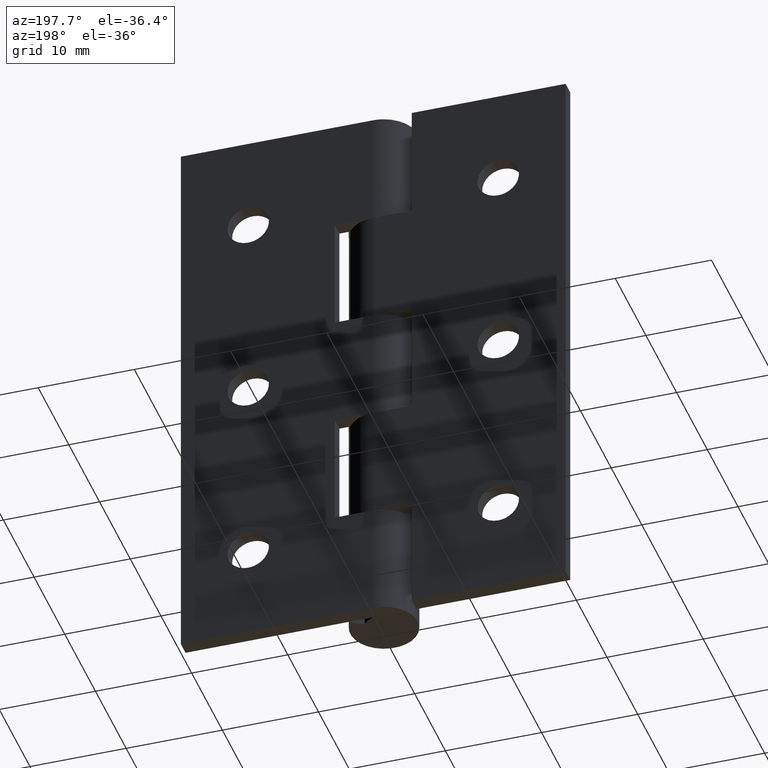
[diagram: clean part render]
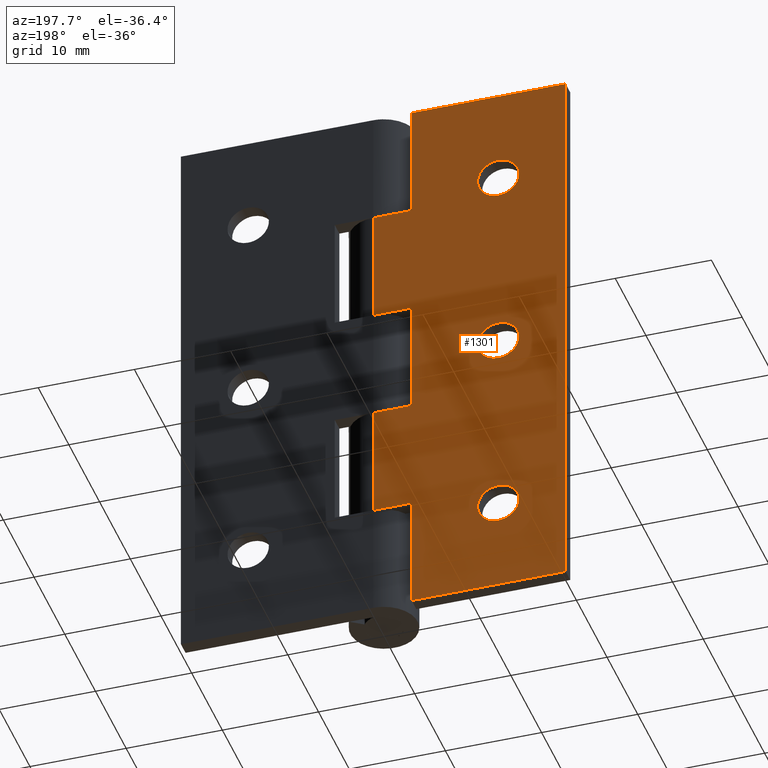
[diagram: same view with one face highlighted and labeled with its STEP entity id]
A machine part, auxiliary view. The second image highlights one B-rep face of the part: STEP entity #1301.
In plain terms, the highlighted face is a freeform B-spline surface patch.
Its self-contained STEP definition (entity closure, byte-faithful):
#79=CARTESIAN_POINT('',(-15.143372267521089,3.499999999999950,50.168687055877513));
#80=VERTEX_POINT('',#79);
#86=CARTESIAN_POINT('',(-12.999999999999799,3.499999999999950,52.149999999999999));
#87=VERTEX_POINT('',#86);
#88=CARTESIAN_POINT('',(-12.999999999999799,3.499999999999950,52.149999999999999));
#89=CARTESIAN_POINT('',(-14.987439556948409,3.499999999999951,52.149999999999999));
#90=CARTESIAN_POINT('',(-15.143372267521102,3.499999999999951,50.168687055877506));
#98=(BOUNDED_CURVE()B_SPLINE_CURVE(2,(#88,#89,#90),.UNSPECIFIED.,.F.,.U.)B_SPLINE_CURVE_WITH_KNOTS((3,3),(0.0,0.236331300622746),.UNSPECIFIED.)CURVE()GEOMETRIC_REPRESENTATION_ITEM()RATIONAL_B_SPLINE_CURVE((1.0,0.723120658616937,0.969723356150902))REPRESENTATION_ITEM(''));
#99=EDGE_CURVE('',#87,#80,#98,.T.);
#101=CARTESIAN_POINT('',(-10.856627732478509,3.499999999999950,49.831312944122480));
#102=VERTEX_POINT('',#101);
#103=CARTESIAN_POINT('',(-10.856627732478511,3.499999999999950,49.831312944122487));
#104=CARTESIAN_POINT('',(-10.849999999999806,3.499999999999950,49.915526269870583));
#105=CARTESIAN_POINT('',(-10.849999999999801,3.499999999999950,50.0));
#106=CARTESIAN_POINT('',(-10.849999999999801,3.499999999999950,52.149999999999999));
#107=CARTESIAN_POINT('',(-12.999999999999799,3.499999999999950,52.149999999999999));
#115=(BOUNDED_CURVE()B_SPLINE_CURVE(2,(#103,#104,#105,#106,#107),.UNSPECIFIED.,.F.,.U.)B_SPLINE_CURVE_WITH_KNOTS((3,2,3),(0.736331300622746,0.750000000000000,1.0),.UNSPECIFIED.)CURVE()GEOMETRIC_REPRESENTATION_ITEM()RATIONAL_B_SPLINE_CURVE((0.969723356150902,0.983986122569610,1.0,0.707106781186547,1.0))REPRESENTATION_ITEM(''));
#116=EDGE_CURVE('',#102,#87,#115,.T.);
#192=CARTESIAN_POINT('',(-12.999999999999799,3.499999999999950,47.850000000000001));
#193=VERTEX_POINT('',#192);
#194=CARTESIAN_POINT('',(-12.999999999999799,3.499999999999950,47.850000000000001));
#195=CARTESIAN_POINT('',(-11.012560443051203,3.499999999999951,47.849999999999994));
#196=CARTESIAN_POINT('',(-10.856627732478504,3.499999999999951,49.831312944122480));
#204=(BOUNDED_CURVE()B_SPLINE_CURVE(2,(#194,#195,#196),.UNSPECIFIED.,.F.,.U.)B_SPLINE_CURVE_WITH_KNOTS((3,3),(0.500000000000000,0.736331300622745),.UNSPECIFIED.)CURVE()GEOMETRIC_REPRESENTATION_ITEM()RATIONAL_B_SPLINE_CURVE((1.0,0.723120658616938,0.969723356150901))REPRESENTATION_ITEM(''));
#205=EDGE_CURVE('',#193,#102,#204,.T.);
#207=CARTESIAN_POINT('',(-15.143372267521098,3.499999999999951,50.168687055877513));
#208=CARTESIAN_POINT('',(-15.149999999999798,3.499999999999950,50.084473730129424));
#209=CARTESIAN_POINT('',(-15.149999999999800,3.499999999999950,50.0));
#210=CARTESIAN_POINT('',(-15.149999999999796,3.499999999999950,47.849999999999994));
#211=CARTESIAN_POINT('',(-12.999999999999799,3.499999999999950,47.850000000000001));
#219=(BOUNDED_CURVE()B_SPLINE_CURVE(2,(#207,#208,#209,#210,#211),.UNSPECIFIED.,.F.,.U.)B_SPLINE_CURVE_WITH_KNOTS((3,2,3),(0.236331300622746,0.250000000000000,0.500000000000000),.UNSPECIFIED.)CURVE()GEOMETRIC_REPRESENTATION_ITEM()RATIONAL_B_SPLINE_CURVE((0.969723356150902,0.983986122569610,1.0,0.707106781186547,1.0))REPRESENTATION_ITEM(''));
#220=EDGE_CURVE('',#80,#193,#219,.T.);
#261=CARTESIAN_POINT('',(-15.143372267521089,3.499999999999950,30.168687055877509));
#262=VERTEX_POINT('',#261);
#268=CARTESIAN_POINT('',(-12.999999999999799,3.499999999999950,32.149999999999999));
#269=VERTEX_POINT('',#268);
#270=CARTESIAN_POINT('',(-12.999999999999799,3.499999999999950,32.149999999999999));
#271=CARTESIAN_POINT('',(-14.987439556948409,3.499999999999951,32.150000000000006));
#272=CARTESIAN_POINT('',(-15.143372267521102,3.499999999999951,30.168687055877513));
#280=(BOUNDED_CURVE()B_SPLINE_CURVE(2,(#270,#271,#272),.UNSPECIFIED.,.F.,.U.)B_SPLINE_CURVE_WITH_KNOTS((3,3),(0.0,0.236331300622746),.UNSPECIFIED.)CURVE()GEOMETRIC_REPRESENTATION_ITEM()RATIONAL_B_SPLINE_CURVE((1.0,0.723120658616937,0.969723356150902))REPRESENTATION_ITEM(''));
#281=EDGE_CURVE('',#269,#262,#280,.T.);
#283=CARTESIAN_POINT('',(-10.856627732478509,3.499999999999950,29.831312944122491));
#284=VERTEX_POINT('',#283);
#285=CARTESIAN_POINT('',(-10.856627732478513,3.499999999999951,29.831312944122484));
#286=CARTESIAN_POINT('',(-10.849999999999795,3.499999999999951,29.915526269870576));
#287=CARTESIAN_POINT('',(-10.849999999999801,3.499999999999950,30.0));
#288=CARTESIAN_POINT('',(-10.849999999999801,3.499999999999950,32.149999999999999));
#289=CARTESIAN_POINT('',(-12.999999999999799,3.499999999999950,32.149999999999999));
#297=(BOUNDED_CURVE()B_SPLINE_CURVE(2,(#285,#286,#287,#288,#289),.UNSPECIFIED.,.F.,.U.)B_SPLINE_CURVE_WITH_KNOTS((3,2,3),(0.736331300622746,0.750000000000000,1.0),.UNSPECIFIED.)CURVE()GEOMETRIC_REPRESENTATION_ITEM()RATIONAL_B_SPLINE_CURVE((0.969723356150902,0.983986122569610,1.0,0.707106781186547,1.0))REPRESENTATION_ITEM(''));
#298=EDGE_CURVE('',#284,#269,#297,.T.);
#374=CARTESIAN_POINT('',(-12.999999999999799,3.499999999999950,27.850000000000001));
#375=VERTEX_POINT('',#374);
#376=CARTESIAN_POINT('',(-12.999999999999799,3.499999999999950,27.850000000000001));
#377=CARTESIAN_POINT('',(-11.012560443051203,3.499999999999951,27.849999999999998));
#378=CARTESIAN_POINT('',(-10.856627732478504,3.499999999999951,29.831312944122487));
#386=(BOUNDED_CURVE()B_SPLINE_CURVE(2,(#376,#377,#378),.UNSPECIFIED.,.F.,.U.)B_SPLINE_CURVE_WITH_KNOTS((3,3),(0.500000000000000,0.736331300622745),.UNSPECIFIED.)CURVE()GEOMETRIC_REPRESENTATION_ITEM()RATIONAL_B_SPLINE_CURVE((1.0,0.723120658616938,0.969723356150901))REPRESENTATION_ITEM(''));
#387=EDGE_CURVE('',#375,#284,#386,.T.);
#389=CARTESIAN_POINT('',(-15.143372267521098,3.499999999999951,30.168687055877513));
#390=CARTESIAN_POINT('',(-15.149999999999798,3.499999999999950,30.084473730129424));
#391=CARTESIAN_POINT('',(-15.149999999999800,3.499999999999950,30.0));
#392=CARTESIAN_POINT('',(-15.149999999999796,3.499999999999950,27.850000000000005));
#393=CARTESIAN_POINT('',(-12.999999999999799,3.499999999999950,27.850000000000001));
#401=(BOUNDED_CURVE()B_SPLINE_CURVE(2,(#389,#390,#391,#392,#393),.UNSPECIFIED.,.F.,.U.)B_SPLINE_CURVE_WITH_KNOTS((3,2,3),(0.236331300622746,0.250000000000000,0.500000000000000),.UNSPECIFIED.)CURVE()GEOMETRIC_REPRESENTATION_ITEM()RATIONAL_B_SPLINE_CURVE((0.969723356150902,0.983986122569610,1.0,0.707106781186547,1.0))REPRESENTATION_ITEM(''));
#402=EDGE_CURVE('',#262,#375,#401,.T.);
#443=CARTESIAN_POINT('',(-15.143372267521089,3.499999999999950,10.168687055877520));
#444=VERTEX_POINT('',#443);
#450=CARTESIAN_POINT('',(-12.999999999999799,3.499999999999950,12.150000000000000));
#451=VERTEX_POINT('',#450);
#452=CARTESIAN_POINT('',(-12.999999999999799,3.499999999999950,12.150000000000000));
#453=CARTESIAN_POINT('',(-14.987439556948409,3.499999999999951,12.149999999999999));
#454=CARTESIAN_POINT('',(-15.143372267521100,3.499999999999950,10.168687055877516));
#462=(BOUNDED_CURVE()B_SPLINE_CURVE(2,(#452,#453,#454),.UNSPECIFIED.,.F.,.U.)B_SPLINE_CURVE_WITH_KNOTS((3,3),(0.0,0.236331300622746),.UNSPECIFIED.)CURVE()GEOMETRIC_REPRESENTATION_ITEM()RATIONAL_B_SPLINE_CURVE((1.0,0.723120658616937,0.969723356150902))REPRESENTATION_ITEM(''));
#463=EDGE_CURVE('',#451,#444,#462,.T.);
#465=CARTESIAN_POINT('',(-10.856627732478509,3.499999999999950,9.831312944122484));
#466=VERTEX_POINT('',#465);
#467=CARTESIAN_POINT('',(-10.856627732478511,3.499999999999950,9.831312944122484));
#468=CARTESIAN_POINT('',(-10.849999999999806,3.499999999999950,9.915526269870570));
#469=CARTESIAN_POINT('',(-10.849999999999801,3.499999999999950,10.0));
#470=CARTESIAN_POINT('',(-10.849999999999801,3.499999999999950,12.150000000000000));
#471=CARTESIAN_POINT('',(-12.999999999999799,3.499999999999950,12.150000000000000));
#479=(BOUNDED_CURVE()B_SPLINE_CURVE(2,(#467,#468,#469,#470,#471),.UNSPECIFIED.,.F.,.U.)B_SPLINE_CURVE_WITH_KNOTS((3,2,3),(0.736331300622746,0.750000000000000,1.0),.UNSPECIFIED.)CURVE()GEOMETRIC_REPRESENTATION_ITEM()RATIONAL_B_SPLINE_CURVE((0.969723356150902,0.983986122569610,1.0,0.707106781186547,1.0))REPRESENTATION_ITEM(''));
#480=EDGE_CURVE('',#466,#451,#479,.T.);
#556=CARTESIAN_POINT('',(-12.999999999999799,3.499999999999950,7.850000000000000));
#557=VERTEX_POINT('',#556);
#558=CARTESIAN_POINT('',(-12.999999999999799,3.499999999999950,7.850000000000000));
#559=CARTESIAN_POINT('',(-11.012560443051203,3.499999999999951,7.849999999999999));
#560=CARTESIAN_POINT('',(-10.856627732478504,3.499999999999951,9.831312944122484));
#568=(BOUNDED_CURVE()B_SPLINE_CURVE(2,(#558,#559,#560),.UNSPECIFIED.,.F.,.U.)B_SPLINE_CURVE_WITH_KNOTS((3,3),(0.500000000000000,0.736331300622745),.UNSPECIFIED.)CURVE()GEOMETRIC_REPRESENTATION_ITEM()RATIONAL_B_SPLINE_CURVE((1.0,0.723120658616938,0.969723356150901))REPRESENTATION_ITEM(''));
#569=EDGE_CURVE('',#557,#466,#568,.T.);
#571=CARTESIAN_POINT('',(-15.143372267521098,3.499999999999951,10.168687055877516));
#572=CARTESIAN_POINT('',(-15.149999999999798,3.499999999999950,10.084473730129428));
#573=CARTESIAN_POINT('',(-15.149999999999800,3.499999999999950,10.0));
#574=CARTESIAN_POINT('',(-15.149999999999796,3.499999999999950,7.849999999999999));
#575=CARTESIAN_POINT('',(-12.999999999999799,3.499999999999950,7.850000000000000));
#583=(BOUNDED_CURVE()B_SPLINE_CURVE(2,(#571,#572,#573,#574,#575),.UNSPECIFIED.,.F.,.U.)B_SPLINE_CURVE_WITH_KNOTS((3,2,3),(0.236331300622746,0.250000000000000,0.500000000000000),.UNSPECIFIED.)CURVE()GEOMETRIC_REPRESENTATION_ITEM()RATIONAL_B_SPLINE_CURVE((0.969723356150902,0.983986122569610,1.0,0.707106781186547,1.0))REPRESENTATION_ITEM(''));
#584=EDGE_CURVE('',#444,#557,#583,.T.);
#597=CARTESIAN_POINT('',(0.0,3.500000000000000,24.0));
#598=VERTEX_POINT('',#597);
#618=CARTESIAN_POINT('',(-3.999999999999800,3.499999999999950,24.0));
#619=VERTEX_POINT('',#618);
#620=CARTESIAN_POINT('',(0.0,3.500000000000000,24.0));
#621=CARTESIAN_POINT('',(-3.999999999999800,3.499999999999950,24.0));
#622=QUASI_UNIFORM_CURVE('',1,(#620,#621),.UNSPECIFIED.,.F.,.U.);
#623=EDGE_CURVE('',#598,#619,#622,.T.);
#673=CARTESIAN_POINT('',(0.0,3.500000000000000,36.0));
#674=VERTEX_POINT('',#673);
#731=CARTESIAN_POINT('',(-3.999999999999800,3.499999999999950,36.0));
#732=VERTEX_POINT('',#731);
#738=CARTESIAN_POINT('',(-3.999999999999800,3.499999999999950,36.0));
#739=CARTESIAN_POINT('',(0.0,3.500000000000000,36.0));
#740=QUASI_UNIFORM_CURVE('',1,(#738,#739),.UNSPECIFIED.,.F.,.U.);
#741=EDGE_CURVE('',#732,#674,#740,.T.);
#757=CARTESIAN_POINT('',(-3.999999999999800,3.499999999999950,24.0));
#758=CARTESIAN_POINT('',(-3.999999999999800,3.499999999999950,36.0));
#759=QUASI_UNIFORM_CURVE('',1,(#757,#758),.UNSPECIFIED.,.F.,.U.);
#760=EDGE_CURVE('',#619,#732,#759,.T.);
#773=CARTESIAN_POINT('',(0.0,3.499999999999950,12.0));
#774=VERTEX_POINT('',#773);
#829=CARTESIAN_POINT('',(-3.999999999999800,3.499999999999950,12.0));
#830=VERTEX_POINT('',#829);
#836=CARTESIAN_POINT('',(-3.999999999999800,3.499999999999950,12.0));
#837=CARTESIAN_POINT('',(0.0,3.499999999999950,12.0));
#838=QUASI_UNIFORM_CURVE('',1,(#836,#837),.UNSPECIFIED.,.F.,.U.);
#839=EDGE_CURVE('',#830,#774,#838,.T.);
#851=CARTESIAN_POINT('',(-3.999999999999800,3.499999999999950,0.0));
#852=VERTEX_POINT('',#851);
#858=CARTESIAN_POINT('',(-3.999999999999800,3.499999999999950,0.0));
#859=CARTESIAN_POINT('',(-3.999999999999800,3.499999999999950,12.0));
#860=QUASI_UNIFORM_CURVE('',1,(#858,#859),.UNSPECIFIED.,.F.,.U.);
#861=EDGE_CURVE('',#852,#830,#860,.T.);
#877=CARTESIAN_POINT('',(-3.999999999999800,3.499999999999950,48.0));
#878=VERTEX_POINT('',#877);
#879=CARTESIAN_POINT('',(0.0,3.499999999999950,48.0));
#880=VERTEX_POINT('',#879);
#881=CARTESIAN_POINT('',(-3.999999999999800,3.499999999999950,48.0));
#882=CARTESIAN_POINT('',(0.0,3.499999999999950,48.0));
#883=QUASI_UNIFORM_CURVE('',1,(#881,#882),.UNSPECIFIED.,.F.,.U.);
#884=EDGE_CURVE('',#878,#880,#883,.T.);
#956=CARTESIAN_POINT('',(-3.999999999999800,3.500000000000000,60.0));
#957=VERTEX_POINT('',#956);
#958=CARTESIAN_POINT('',(-3.999999999999800,3.500000000000000,60.0));
#959=CARTESIAN_POINT('',(-3.999999999999800,3.499999999999950,48.0));
#960=QUASI_UNIFORM_CURVE('',1,(#958,#959),.UNSPECIFIED.,.F.,.U.);
#961=EDGE_CURVE('',#957,#878,#960,.T.);
#985=CARTESIAN_POINT('',(-20.0,3.500000000000000,0.0));
#986=VERTEX_POINT('',#985);
#999=CARTESIAN_POINT('',(-20.0,3.500000000000000,60.0));
#1000=VERTEX_POINT('',#999);
#1006=CARTESIAN_POINT('',(-20.0,3.500000000000000,60.0));
#1007=CARTESIAN_POINT('',(-20.0,3.500000000000000,0.0));
#1008=QUASI_UNIFORM_CURVE('',1,(#1006,#1007),.UNSPECIFIED.,.F.,.U.);
#1009=EDGE_CURVE('',#1000,#986,#1008,.T.);
#1020=CARTESIAN_POINT('',(-20.0,3.500000000000000,60.0));
#1021=CARTESIAN_POINT('',(-3.999999999999800,3.500000000000000,60.0));
#1022=QUASI_UNIFORM_CURVE('',1,(#1020,#1021),.UNSPECIFIED.,.F.,.U.);
#1023=EDGE_CURVE('',#1000,#957,#1022,.T.);
#1039=CARTESIAN_POINT('',(-20.0,3.500000000000000,0.0));
#1040=CARTESIAN_POINT('',(-3.999999999999800,3.499999999999950,0.0));
#1041=QUASI_UNIFORM_CURVE('',1,(#1039,#1040),.UNSPECIFIED.,.F.,.U.);
#1042=EDGE_CURVE('',#986,#852,#1041,.T.);
#1135=CARTESIAN_POINT('',(0.0,3.499999999999950,48.0));
#1136=CARTESIAN_POINT('',(0.0,3.500000000000000,36.0));
#1137=QUASI_UNIFORM_CURVE('',1,(#1135,#1136),.UNSPECIFIED.,.F.,.U.);
#1138=EDGE_CURVE('',#880,#674,#1137,.T.);
#1218=CARTESIAN_POINT('',(0.0,3.500000000000000,24.0));
#1219=CARTESIAN_POINT('',(0.0,3.499999999999950,12.0));
#1220=QUASI_UNIFORM_CURVE('',1,(#1218,#1219),.UNSPECIFIED.,.F.,.U.);
#1221=EDGE_CURVE('',#598,#774,#1220,.T.);
#1264=CARTESIAN_POINT('',(-20.998999961236120,3.500000000000000,-2.996999883708359));
#1265=CARTESIAN_POINT('',(-20.998999961236120,3.500000000000000,62.997001493033771));
#1266=CARTESIAN_POINT('',(0.999000497677920,3.500000000000000,-2.996999883708359));
#1267=CARTESIAN_POINT('',(0.999000497677920,3.500000000000000,62.997001493033771));
#1268=B_SPLINE_SURFACE_WITH_KNOTS('',1,1,((#1264,#1266),(#1265,#1267)),.UNSPECIFIED.,.F.,.F.,.U.,(2,2),(2,2),(0.0,65.994001376742133),(0.0,21.998000458914039),.UNSPECIFIED.);
#1269=ORIENTED_EDGE('',*,*,#741,.F.);
#1270=ORIENTED_EDGE('',*,*,#760,.F.);
#1271=ORIENTED_EDGE('',*,*,#623,.F.);
#1272=ORIENTED_EDGE('',*,*,#1221,.T.);
#1273=ORIENTED_EDGE('',*,*,#839,.F.);
#1274=ORIENTED_EDGE('',*,*,#861,.F.);
#1275=ORIENTED_EDGE('',*,*,#1042,.F.);
#1276=ORIENTED_EDGE('',*,*,#1009,.F.);
#1277=ORIENTED_EDGE('',*,*,#1023,.T.);
#1278=ORIENTED_EDGE('',*,*,#961,.T.);
#1279=ORIENTED_EDGE('',*,*,#884,.T.);
#1280=ORIENTED_EDGE('',*,*,#1138,.T.);
#1281=EDGE_LOOP('',(#1269,#1270,#1271,#1272,#1273,#1274,#1275,#1276,#1277,#1278,#1279,#1280));
#1282=FACE_OUTER_BOUND('',#1281,.T.);
#1283=ORIENTED_EDGE('',*,*,#569,.T.);
#1284=ORIENTED_EDGE('',*,*,#480,.T.);
#1285=ORIENTED_EDGE('',*,*,#463,.T.);
#1286=ORIENTED_EDGE('',*,*,#584,.T.);
#1287=EDGE_LOOP('',(#1283,#1284,#1285,#1286));
#1288=FACE_BOUND('',#1287,.T.);
#1289=ORIENTED_EDGE('',*,*,#387,.T.);
#1290=ORIENTED_EDGE('',*,*,#298,.T.);
#1291=ORIENTED_EDGE('',*,*,#281,.T.);
#1292=ORIENTED_EDGE('',*,*,#402,.T.);
#1293=EDGE_LOOP('',(#1289,#1290,#1291,#1292));
#1294=FACE_BOUND('',#1293,.T.);
#1295=ORIENTED_EDGE('',*,*,#205,.T.);
#1296=ORIENTED_EDGE('',*,*,#116,.T.);
#1297=ORIENTED_EDGE('',*,*,#99,.T.);
#1298=ORIENTED_EDGE('',*,*,#220,.T.);
#1299=EDGE_LOOP('',(#1295,#1296,#1297,#1298));
#1300=FACE_BOUND('',#1299,.T.);
#1301=ADVANCED_FACE('',(#1282,#1288,#1294,#1300),#1268,.T.);